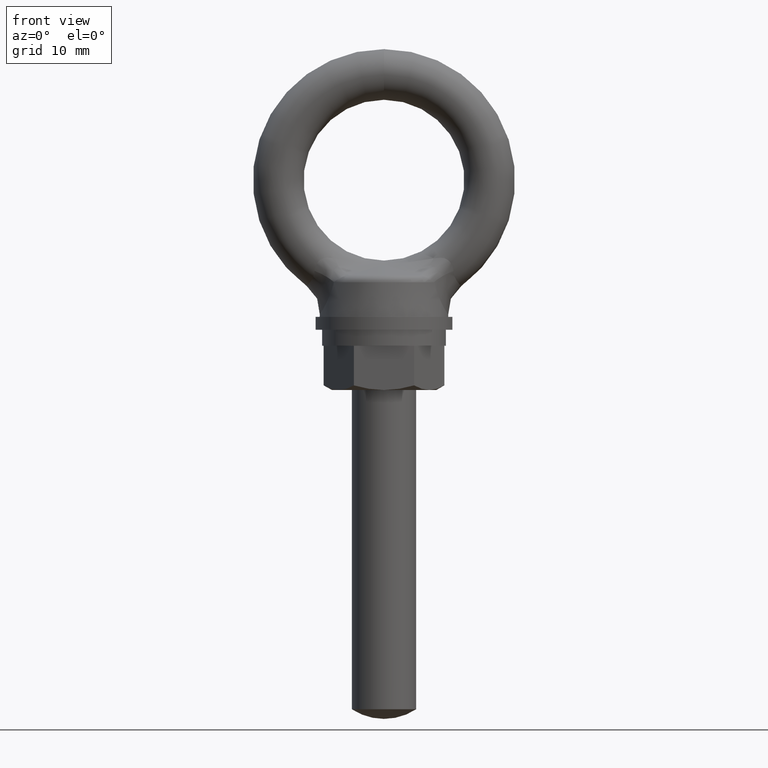
[diagram: clean part render]
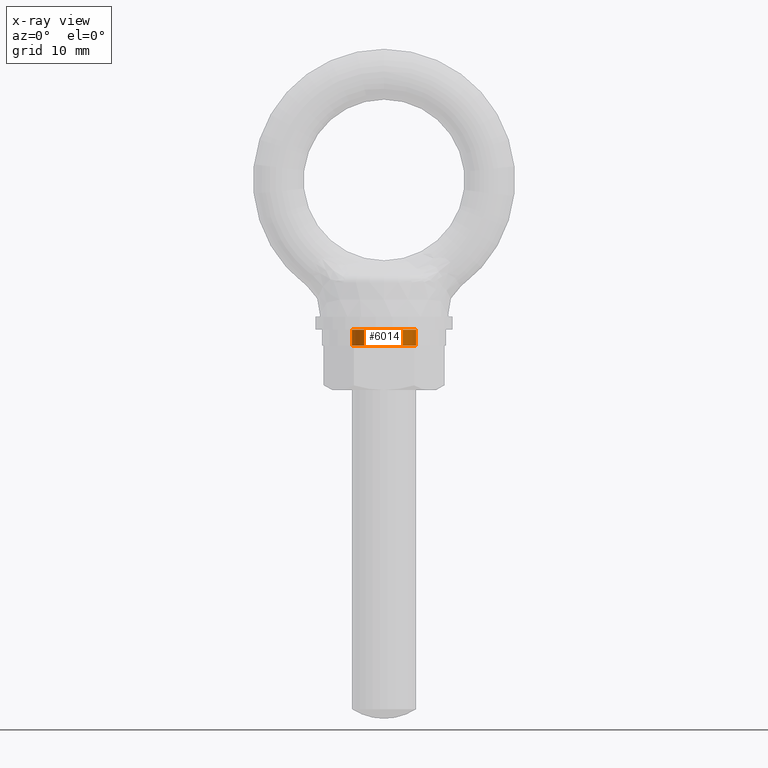
[diagram: x-ray — body ghosted, one internal face saturated and labeled with its STEP entity id]
A machine part, front view, then the same camera in x-ray: the body is ghosted and one INTERNAL B-rep face — a face not visible from any outside direction — is saturated and labeled: STEP entity #6014.
In plain terms, the highlighted cylindrical surface (edge-blend (fillet) strip) has radius 4 mm, axis along (0, 0, -1).
Its self-contained STEP definition (entity closure, byte-faithful):
#5919 = ORIENTED_EDGE ( 'NONE', *, *, #5920, .F. ) ;
#5920 = EDGE_CURVE ( 'NONE', #5924, #5925, #6577, .T. ) ;
#5924 = VERTEX_POINT ( 'NONE', #6493 ) ;
#5925 = VERTEX_POINT ( 'NONE', #6492 ) ;
#5926 = ORIENTED_EDGE ( 'NONE', *, *, #5927, .T. ) ;
#5927 = EDGE_CURVE ( 'NONE', #5924, #5928, #6491, .T. ) ;
#5928 = VERTEX_POINT ( 'NONE', #6487 ) ;
#5929 = ORIENTED_EDGE ( 'NONE', *, *, #5982, .T. ) ;
#5933 = EDGE_LOOP ( 'NONE', ( #5919, #5926, #5929, #5984 ) ) ;
#5982 = EDGE_CURVE ( 'NONE', #5928, #5983, #6594, .T. ) ;
#5983 = VERTEX_POINT ( 'NONE', #6589 ) ;
#5984 = ORIENTED_EDGE ( 'NONE', *, *, #5985, .F. ) ;
#5985 = EDGE_CURVE ( 'NONE', #5925, #5983, #6571, .T. ) ;
#6014 = ADVANCED_FACE ( 'NONE', ( #6208 ), #6207, .F. ) ;
#6202 = DIRECTION ( 'NONE',  ( 0.0000000000000000000, 0.0000000000000000000, -1.000000000000000000 ) ) ;
#6203 = CARTESIAN_POINT ( 'NONE',  ( 0.0000000000000000000, 0.0000000000000000000, 979.4000009999999700 ) ) ;
#6204 = AXIS2_PLACEMENT_3D ( 'NONE', #6203, #6202, #6964 ) ;
#6207 = CYLINDRICAL_SURFACE ( 'NONE', #6204, 4.000000000000000000 ) ;
#6208 = FACE_OUTER_BOUND ( 'NONE', #5933, .T. ) ;
#6487 = CARTESIAN_POINT ( 'NONE',  ( 4.000000000000000000, 4.898425415289509000E-016, -20.59999900000000000 ) ) ;
#6488 = DIRECTION ( 'NONE',  ( 0.0000000000000000000, 0.0000000000000000000, -1.000000000000000000 ) ) ;
#6489 = VECTOR ( 'NONE', #6488, 1000.000000000000000 ) ;
#6490 = CARTESIAN_POINT ( 'NONE',  ( 4.000000000000000000, 4.898425415289509000E-016, 979.4000009999999700 ) ) ;
#6491 = LINE ( 'NONE', #6490, #6489 ) ;
#6492 = CARTESIAN_POINT ( 'NONE',  ( -4.000000000000000000, 0.0000000000000000000, -18.59999900000000000 ) ) ;
#6493 = CARTESIAN_POINT ( 'NONE',  ( 4.000000000000000000, 4.898425415289509000E-016, -18.59999900000000000 ) ) ;
#6494 = DIRECTION ( 'NONE',  ( 1.000000000000000000, 0.0000000000000000000, 0.0000000000000000000 ) ) ;
#6495 = DIRECTION ( 'NONE',  ( 0.0000000000000000000, 0.0000000000000000000, -1.000000000000000000 ) ) ;
#6568 = DIRECTION ( 'NONE',  ( 0.0000000000000000000, 0.0000000000000000000, -1.000000000000000000 ) ) ;
#6569 = VECTOR ( 'NONE', #6568, 1000.000000000000000 ) ;
#6570 = CARTESIAN_POINT ( 'NONE',  ( -4.000000000000000000, 0.0000000000000000000, 979.4000009999999700 ) ) ;
#6571 = LINE ( 'NONE', #6570, #6569 ) ;
#6574 = CARTESIAN_POINT ( 'NONE',  ( 0.0000000000000000000, 0.0000000000000000000, -18.59999900000000000 ) ) ;
#6575 = AXIS2_PLACEMENT_3D ( 'NONE', #6574, #6495, #6494 ) ;
#6577 = CIRCLE ( 'NONE', #6575, 4.000000000000000000 ) ;
#6589 = CARTESIAN_POINT ( 'NONE',  ( -4.000000000000000000, 0.0000000000000000000, -20.59999900000000000 ) ) ;
#6590 = DIRECTION ( 'NONE',  ( 1.000000000000000000, 0.0000000000000000000, 0.0000000000000000000 ) ) ;
#6591 = DIRECTION ( 'NONE',  ( 0.0000000000000000000, 0.0000000000000000000, -1.000000000000000000 ) ) ;
#6592 = CARTESIAN_POINT ( 'NONE',  ( 0.0000000000000000000, 0.0000000000000000000, -20.59999900000000000 ) ) ;
#6593 = AXIS2_PLACEMENT_3D ( 'NONE', #6592, #6591, #6590 ) ;
#6594 = CIRCLE ( 'NONE', #6593, 4.000000000000000000 ) ;
#6964 = DIRECTION ( 'NONE',  ( -1.000000000000000000, 0.0000000000000000000, 0.0000000000000000000 ) ) ;